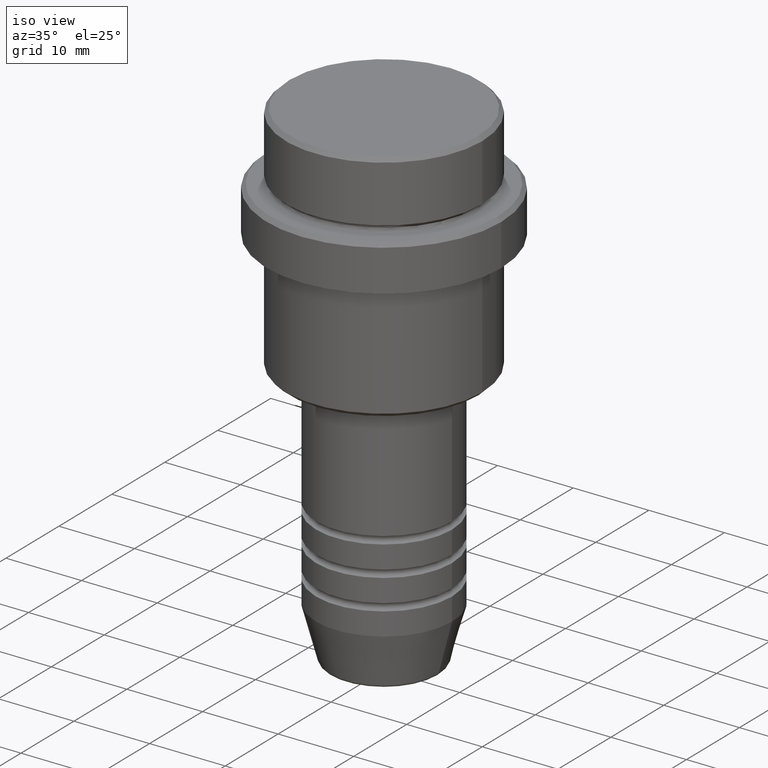
[diagram: clean part render]
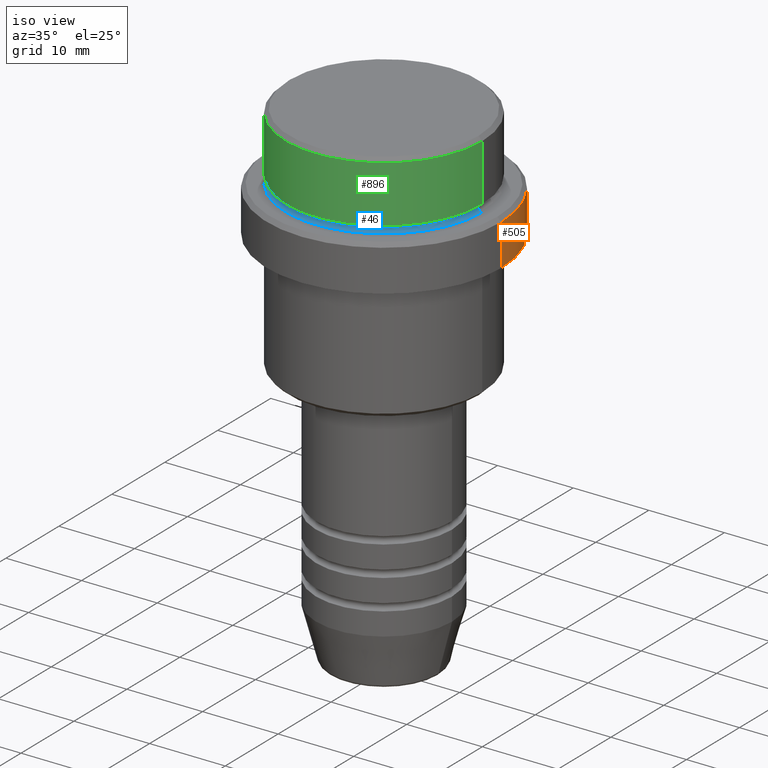
[diagram: same view with three faces highlighted in distinct colors, each labeled with its STEP entity id]
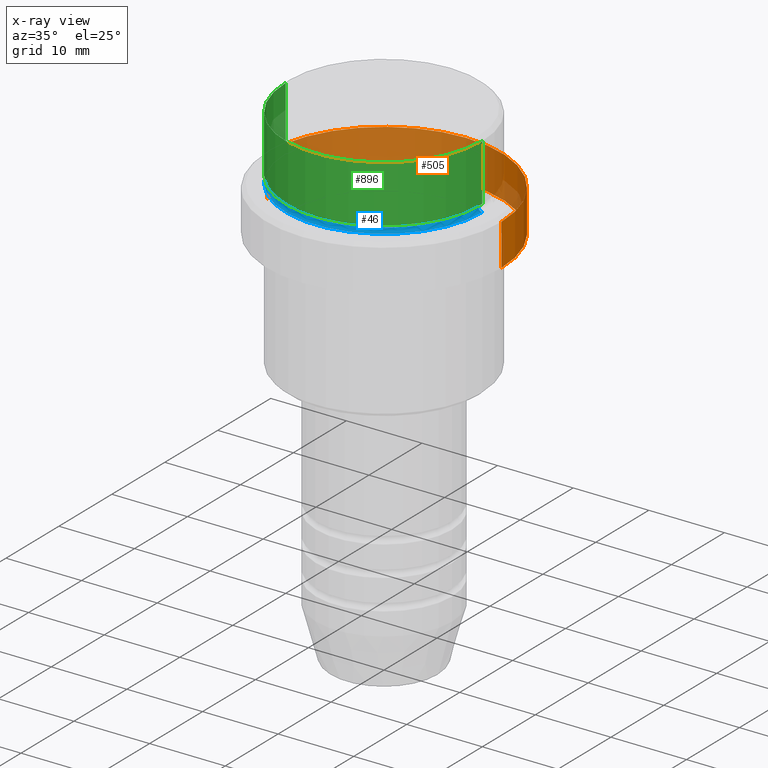
[diagram: x-ray of the same camera — body ghosted, the three highlighted faces saturated]
A machine part, iso view with three faces highlighted in distinct colors.
The next image is the same camera in x-ray (body ghosted, the three faces saturated) — at least one of them is partly hidden behind the body in this view.
Their STEP definitions:

[orange] entity #505 — the highlighted cylindrical surface (partial cylindrical patch) has radius 15.5 mm, axis along (-0, -0, 1).
#26 = CARTESIAN_POINT ( 'NONE',  ( 0.000000000000000000, 0.000000000000000000, 0.000000000000000000 ) ) ;
#28 = CIRCLE ( 'NONE', #824, 15.50000000000000000 ) ;
#34 = DIRECTION ( 'NONE',  ( 1.000000000000000000, 0.000000000000000000, 0.000000000000000000 ) ) ;
#107 = DIRECTION ( 'NONE',  ( -0.000000000000000000, -0.000000000000000000, 1.000000000000000000 ) ) ;
#155 = AXIS2_PLACEMENT_3D ( 'NONE', #26, #1096, #444 ) ;
#156 = EDGE_CURVE ( 'NONE', #941, #1303, #221, .T. ) ;
#179 = ORIENTED_EDGE ( 'NONE', *, *, #1254, .T. ) ;
#185 = LINE ( 'NONE', #1039, #1033 ) ;
#221 = LINE ( 'NONE', #1326, #1167 ) ;
#241 = AXIS2_PLACEMENT_3D ( 'NONE', #1351, #1014, #34 ) ;
#278 = CARTESIAN_POINT ( 'NONE',  ( 0.000000000000000000, 0.000000000000000000, -15.00000000000000000 ) ) ;
#349 = CARTESIAN_POINT ( 'NONE',  ( -15.50000000000000000, 1.898202538678397557E-15, -9.500000000000005329 ) ) ;
#395 = DIRECTION ( 'NONE',  ( -0.000000000000000000, -0.000000000000000000, 1.000000000000000000 ) ) ;
#397 = VERTEX_POINT ( 'NONE', #624 ) ;
#444 = DIRECTION ( 'NONE',  ( 1.000000000000000000, 0.000000000000000000, 0.000000000000000000 ) ) ;
#505 = ADVANCED_FACE ( 'NONE', ( #1197 ), #1100, .T. ) ;
#552 = VERTEX_POINT ( 'NONE', #1103 ) ;
#607 = DIRECTION ( 'NONE',  ( 1.000000000000000000, 0.000000000000000000, 0.000000000000000000 ) ) ;
#624 = CARTESIAN_POINT ( 'NONE',  ( 15.50000000000000000, 0.000000000000000000, -9.500000000000005329 ) ) ;
#686 = EDGE_LOOP ( 'NONE', ( #1360, #1233, #179, #845 ) ) ;
#739 = DIRECTION ( 'NONE',  ( -0.000000000000000000, -0.000000000000000000, 1.000000000000000000 ) ) ;
#824 = AXIS2_PLACEMENT_3D ( 'NONE', #278, #395, #607 ) ;
#845 = ORIENTED_EDGE ( 'NONE', *, *, #1403, .F. ) ;
#941 = VERTEX_POINT ( 'NONE', #1063 ) ;
#1014 = DIRECTION ( 'NONE',  ( 0.000000000000000000, 0.000000000000000000, -1.000000000000000000 ) ) ;
#1033 = VECTOR ( 'NONE', #739, 1000.000000000000000 ) ;
#1039 = CARTESIAN_POINT ( 'NONE',  ( 15.50000000000000000, 0.000000000000000000, 0.000000000000000000 ) ) ;
#1063 = CARTESIAN_POINT ( 'NONE',  ( -15.50000000000000000, 1.898202538678397557E-15, -15.00000000000000000 ) ) ;
#1096 = DIRECTION ( 'NONE',  ( -0.000000000000000000, -0.000000000000000000, 1.000000000000000000 ) ) ;
#1100 = CYLINDRICAL_SURFACE ( 'NONE', #155, 15.50000000000000000 ) ;
#1103 = CARTESIAN_POINT ( 'NONE',  ( 15.50000000000000000, 0.000000000000000000, -15.00000000000000000 ) ) ;
#1167 = VECTOR ( 'NONE', #107, 1000.000000000000000 ) ;
#1197 = FACE_OUTER_BOUND ( 'NONE', #686, .T. ) ;
#1233 = ORIENTED_EDGE ( 'NONE', *, *, #156, .T. ) ;
#1254 = EDGE_CURVE ( 'NONE', #1303, #397, #1377, .T. ) ;
#1303 = VERTEX_POINT ( 'NONE', #349 ) ;
#1326 = CARTESIAN_POINT ( 'NONE',  ( -15.50000000000000000, 1.898202538678397557E-15, 0.000000000000000000 ) ) ;
#1351 = CARTESIAN_POINT ( 'NONE',  ( 0.000000000000000000, 0.000000000000000000, -9.500000000000005329 ) ) ;
#1360 = ORIENTED_EDGE ( 'NONE', *, *, #1407, .T. ) ;
#1377 = CIRCLE ( 'NONE', #241, 15.50000000000000000 ) ;
#1403 = EDGE_CURVE ( 'NONE', #552, #397, #185, .T. ) ;
#1407 = EDGE_CURVE ( 'NONE', #552, #941, #28, .T. ) ;

[blue] entity #46 — the highlighted toroidal blend (fillet) surface has major radius 13 mm and minor (blend) radius 0.5 mm.
#5 = AXIS2_PLACEMENT_3D ( 'NONE', #573, #985, #20 ) ;
#18 = DIRECTION ( 'NONE',  ( 0.000000000000000000, -1.000000000000000000, 0.000000000000000000 ) ) ;
#20 = DIRECTION ( 'NONE',  ( 1.000000000000000000, 0.000000000000000000, 0.000000000000000000 ) ) ;
#46 = ADVANCED_FACE ( 'NONE', ( #1340 ), #1069, .F. ) ;
#126 = DIRECTION ( 'NONE',  ( 1.224646799147353207E-16, 1.000000000000000000, 0.000000000000000000 ) ) ;
#325 = CARTESIAN_POINT ( 'NONE',  ( -12.99999999999999467, 1.592040838891558504E-15, -8.499999999999998224 ) ) ;
#355 = DIRECTION ( 'NONE',  ( -0.000000000000000000, -0.000000000000000000, 1.000000000000000000 ) ) ;
#369 = DIRECTION ( 'NONE',  ( 1.000000000000000000, 0.000000000000000000, 0.000000000000000000 ) ) ;
#378 = ORIENTED_EDGE ( 'NONE', *, *, #1147, .F. ) ;
#416 = VERTEX_POINT ( 'NONE', #1068 ) ;
#461 = CARTESIAN_POINT ( 'NONE',  ( -12.99999999999999467, 1.592040838891558504E-15, -9.000000000000000000 ) ) ;
#468 = AXIS2_PLACEMENT_3D ( 'NONE', #325, #126, #671 ) ;
#511 = CARTESIAN_POINT ( 'NONE',  ( 12.99999999999999467, 0.000000000000000000, -9.000000000000000000 ) ) ;
#559 = EDGE_CURVE ( 'NONE', #1264, #416, #1024, .T. ) ;
#560 = CIRCLE ( 'NONE', #468, 0.5000000000000004441 ) ;
#573 = CARTESIAN_POINT ( 'NONE',  ( 0.000000000000000000, 0.000000000000000000, -8.499999999999998224 ) ) ;
#575 = AXIS2_PLACEMENT_3D ( 'NONE', #786, #18, #1339 ) ;
#616 = EDGE_LOOP ( 'NONE', ( #826, #1067, #378, #1368 ) ) ;
#629 = DIRECTION ( 'NONE',  ( 0.000000000000000000, 0.000000000000000000, -1.000000000000000000 ) ) ;
#671 = DIRECTION ( 'NONE',  ( -1.000000000000000000, 1.224646799147353454E-16, 0.000000000000000000 ) ) ;
#726 = DIRECTION ( 'NONE',  ( 1.000000000000000000, 0.000000000000000000, 0.000000000000000000 ) ) ;
#786 = CARTESIAN_POINT ( 'NONE',  ( 12.99999999999999467, 0.000000000000000000, -8.499999999999998224 ) ) ;
#826 = ORIENTED_EDGE ( 'NONE', *, *, #559, .F. ) ;
#831 = CARTESIAN_POINT ( 'NONE',  ( 0.000000000000000000, 0.000000000000000000, -9.000000000000000000 ) ) ;
#911 = CARTESIAN_POINT ( 'NONE',  ( 0.000000000000000000, 0.000000000000000000, -8.499999999999998224 ) ) ;
#985 = DIRECTION ( 'NONE',  ( -0.000000000000000000, -0.000000000000000000, 1.000000000000000000 ) ) ;
#994 = CARTESIAN_POINT ( 'NONE',  ( -12.49999999999999289, 1.561424668912874519E-15, -8.499999999999998224 ) ) ;
#1024 = CIRCLE ( 'NONE', #5, 12.49999999999999289 ) ;
#1067 = ORIENTED_EDGE ( 'NONE', *, *, #1104, .T. ) ;
#1068 = CARTESIAN_POINT ( 'NONE',  ( 12.49999999999999289, 0.000000000000000000, -8.499999999999998224 ) ) ;
#1069 = TOROIDAL_SURFACE ( 'NONE', #1099, 12.99999999999999467, 0.5000000000000000000 ) ;
#1099 = AXIS2_PLACEMENT_3D ( 'NONE', #911, #355, #369 ) ;
#1104 = EDGE_CURVE ( 'NONE', #1264, #1210, #560, .T. ) ;
#1106 = AXIS2_PLACEMENT_3D ( 'NONE', #831, #629, #726 ) ;
#1131 = VERTEX_POINT ( 'NONE', #511 ) ;
#1147 = EDGE_CURVE ( 'NONE', #1131, #1210, #1309, .T. ) ;
#1210 = VERTEX_POINT ( 'NONE', #461 ) ;
#1264 = VERTEX_POINT ( 'NONE', #994 ) ;
#1268 = EDGE_CURVE ( 'NONE', #416, #1131, #1412, .T. ) ;
#1309 = CIRCLE ( 'NONE', #1106, 12.99999999999999467 ) ;
#1339 = DIRECTION ( 'NONE',  ( 0.000000000000000000, 0.000000000000000000, -1.000000000000000000 ) ) ;
#1340 = FACE_OUTER_BOUND ( 'NONE', #616, .T. ) ;
#1368 = ORIENTED_EDGE ( 'NONE', *, *, #1268, .F. ) ;
#1412 = CIRCLE ( 'NONE', #575, 0.5000000000000004441 ) ;

[green] entity #896 — the highlighted cylindrical surface (partial cylindrical patch) has radius 13 mm, axis along (-0, -0, 1).
#38 = VECTOR ( 'NONE', #651, 1000.000000000000000 ) ;
#74 = EDGE_CURVE ( 'NONE', #1358, #788, #638, .T. ) ;
#93 = VECTOR ( 'NONE', #608, 1000.000000000000000 ) ;
#123 = EDGE_CURVE ( 'NONE', #984, #788, #554, .T. ) ;
#186 = LINE ( 'NONE', #827, #93 ) ;
#262 = CARTESIAN_POINT ( 'NONE',  ( 0.000000000000000000, 0.000000000000000000, -7.999999999999998224 ) ) ;
#276 = EDGE_CURVE ( 'NONE', #1401, #1358, #186, .T. ) ;
#305 = CARTESIAN_POINT ( 'NONE',  ( 12.99999999999999822, 0.000000000000000000, -0.4999999999999968914 ) ) ;
#324 = DIRECTION ( 'NONE',  ( 1.000000000000000000, 0.000000000000000000, 0.000000000000000000 ) ) ;
#358 = EDGE_LOOP ( 'NONE', ( #805, #1353, #773, #370 ) ) ;
#370 = ORIENTED_EDGE ( 'NONE', *, *, #74, .T. ) ;
#411 = CARTESIAN_POINT ( 'NONE',  ( 0.000000000000000000, 0.000000000000000000, 0.000000000000000000 ) ) ;
#429 = CARTESIAN_POINT ( 'NONE',  ( -12.99999999999999822, 1.592040838891558898E-15, -7.999999999999998224 ) ) ;
#533 = CIRCLE ( 'NONE', #693, 12.99999999999999822 ) ;
#554 = LINE ( 'NONE', #892, #38 ) ;
#608 = DIRECTION ( 'NONE',  ( -0.000000000000000000, -0.000000000000000000, 1.000000000000000000 ) ) ;
#626 = CARTESIAN_POINT ( 'NONE',  ( -12.99999999999999822, 1.592040838891558898E-15, -0.4999999999999968914 ) ) ;
#638 = CIRCLE ( 'NONE', #1027, 12.99999999999999822 ) ;
#651 = DIRECTION ( 'NONE',  ( -0.000000000000000000, -0.000000000000000000, 1.000000000000000000 ) ) ;
#679 = CARTESIAN_POINT ( 'NONE',  ( 0.000000000000000000, 0.000000000000000000, -0.4999999999999968914 ) ) ;
#693 = AXIS2_PLACEMENT_3D ( 'NONE', #262, #1245, #1022 ) ;
#767 = AXIS2_PLACEMENT_3D ( 'NONE', #411, #980, #324 ) ;
#773 = ORIENTED_EDGE ( 'NONE', *, *, #276, .T. ) ;
#788 = VERTEX_POINT ( 'NONE', #626 ) ;
#805 = ORIENTED_EDGE ( 'NONE', *, *, #123, .F. ) ;
#827 = CARTESIAN_POINT ( 'NONE',  ( 12.99999999999999822, 0.000000000000000000, 0.000000000000000000 ) ) ;
#892 = CARTESIAN_POINT ( 'NONE',  ( -12.99999999999999822, 1.592040838891558898E-15, 0.000000000000000000 ) ) ;
#896 = ADVANCED_FACE ( 'NONE', ( #1165 ), #1405, .T. ) ;
#899 = DIRECTION ( 'NONE',  ( 1.000000000000000000, 0.000000000000000000, 0.000000000000000000 ) ) ;
#980 = DIRECTION ( 'NONE',  ( -0.000000000000000000, -0.000000000000000000, 1.000000000000000000 ) ) ;
#984 = VERTEX_POINT ( 'NONE', #429 ) ;
#1022 = DIRECTION ( 'NONE',  ( 1.000000000000000000, 0.000000000000000000, 0.000000000000000000 ) ) ;
#1027 = AXIS2_PLACEMENT_3D ( 'NONE', #679, #1114, #899 ) ;
#1114 = DIRECTION ( 'NONE',  ( 0.000000000000000000, 0.000000000000000000, -1.000000000000000000 ) ) ;
#1165 = FACE_OUTER_BOUND ( 'NONE', #358, .T. ) ;
#1229 = EDGE_CURVE ( 'NONE', #984, #1401, #533, .T. ) ;
#1245 = DIRECTION ( 'NONE',  ( -0.000000000000000000, -0.000000000000000000, 1.000000000000000000 ) ) ;
#1259 = CARTESIAN_POINT ( 'NONE',  ( 12.99999999999999822, 0.000000000000000000, -7.999999999999998224 ) ) ;
#1353 = ORIENTED_EDGE ( 'NONE', *, *, #1229, .T. ) ;
#1358 = VERTEX_POINT ( 'NONE', #305 ) ;
#1401 = VERTEX_POINT ( 'NONE', #1259 ) ;
#1405 = CYLINDRICAL_SURFACE ( 'NONE', #767, 12.99999999999999822 ) ;